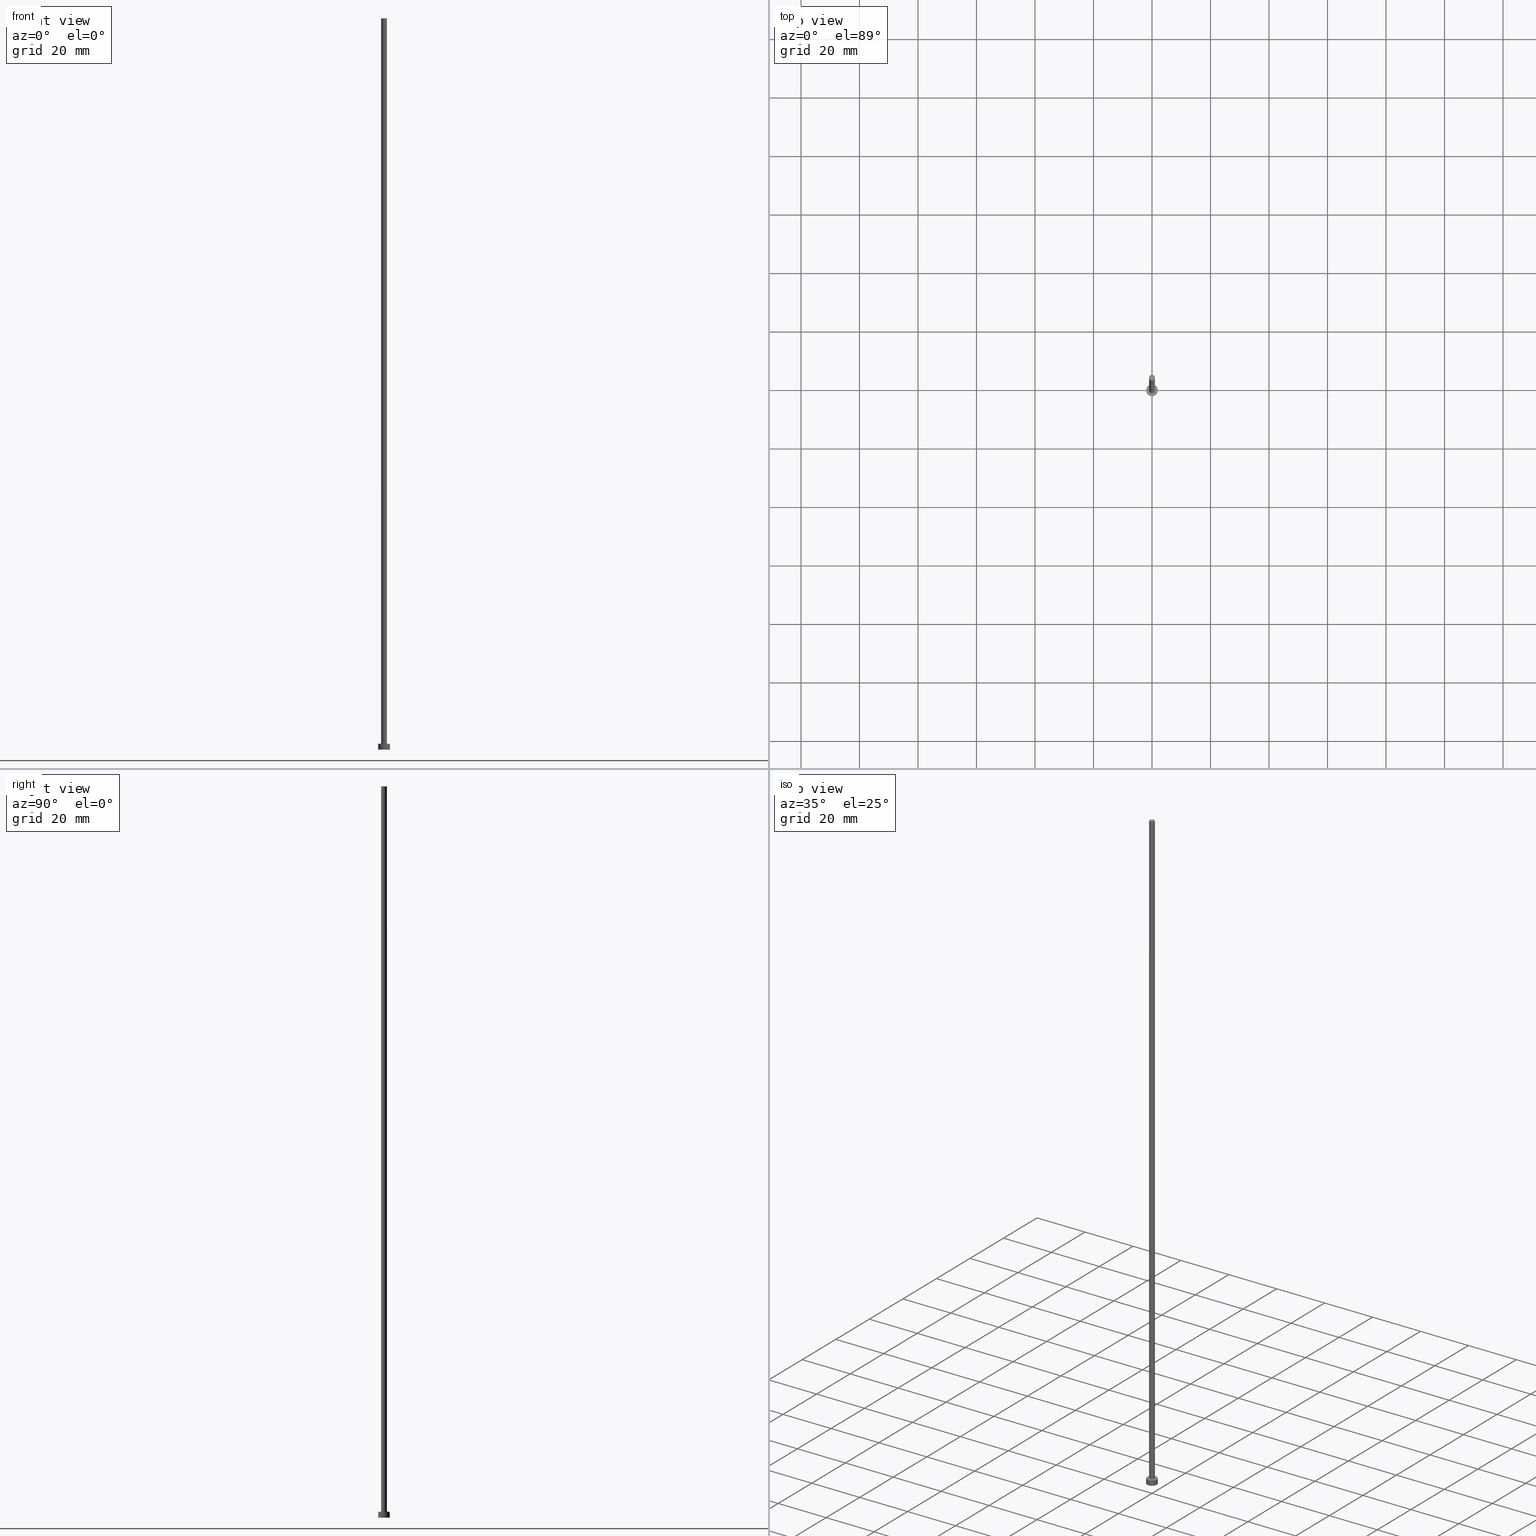
[diagram: canonical four-view strip — front | top / right | iso, engineering-drawing reading convention]
A machine part, canonical four-view strip (front | top / right | iso — engineering-drawing reading convention). The complete STEP part file that produces these views, byte-faithful:
ISO-10303-21;
HEADER;
FILE_DESCRIPTION (( 'STEP AP203' ),
    '1' );
FILE_NAME ('24d1.STEP',
    '2023-02-13T17:14:08',
    ( '' ),
    ( '' ),
    'SwSTEP 2.0',
    'SolidWorks 2019',
    '' );
FILE_SCHEMA (( 'CONFIG_CONTROL_DESIGN' ));
ENDSEC;

DATA;
#1 = CALENDAR_DATE ( 2023, 13, 2 ) ;
#2 = APPROVAL ( #202, 'NEUR�EN�' ) ;
#3 = ORIENTED_EDGE ( 'NONE', *, *, #102, .T. ) ;
#4 = DATE_AND_TIME ( #186, #90 ) ;
#5 = EDGE_LOOP ( 'NONE', ( #205, #103 ) ) ;
#6 = PERSON_AND_ORGANIZATION ( #9, #159 ) ;
#7 = COORDINATED_UNIVERSAL_TIME_OFFSET ( 1, 0, .AHEAD. ) ;
#8 = CARTESIAN_POINT ( 'NONE',  ( -1.000000000000000000, 0.000000000000000000, 250.0000000000000000 ) ) ;
#9 = PERSON ( 'NEUR�EN�', 'NEUR�EN�', 'NEUR�EN�', ('NEUR�EN�'), ('NEUR�EN�'), ('NEUR�EN�') ) ;
#10 = DIRECTION ( 'NONE',  ( 0.000000000000000000, 0.000000000000000000, 1.000000000000000000 ) ) ;
#11 = DIRECTION ( 'NONE',  ( 1.000000000000000000, 0.000000000000000000, -0.000000000000000000 ) ) ;
#12 = CARTESIAN_POINT ( 'NONE',  ( 2.000000000000000000, 2.449293598294706414E-16, 2.000000000000000000 ) ) ;
#13 = APPROVAL ( #216, 'NEUR�EN�' ) ;
#14 = CYLINDRICAL_SURFACE ( 'NONE', #69, 1.000000000000000000 ) ;
#15 = DIRECTION ( 'NONE',  ( 0.000000000000000000, 0.000000000000000000, 1.000000000000000000 ) ) ;
#16 = EDGE_CURVE ( 'NONE', #44, #240, #175, .T. ) ;
#17 = CARTESIAN_POINT ( 'NONE',  ( 0.000000000000000000, 0.000000000000000000, 0.000000000000000000 ) ) ;
#18 = LOCAL_TIME ( 18, 14, 8.000000000000000000, #87 ) ;
#19 = EDGE_CURVE ( 'NONE', #28, #127, #77, .T. ) ;
#20 = PERSON_AND_ORGANIZATION ( #9, #159 ) ;
#21 = EDGE_LOOP ( 'NONE', ( #23, #170, #130, #65 ) ) ;
#22 = SECURITY_CLASSIFICATION_LEVEL ( 'unclassified' ) ;
#23 = ORIENTED_EDGE ( 'NONE', *, *, #118, .F. ) ;
#24 = APPROVAL_ROLE ( '' ) ;
#25 = ORIENTED_EDGE ( 'NONE', *, *, #173, .F. ) ;
#26 = ADVANCED_FACE ( 'NONE', ( #228, #48 ), #208, .T. ) ;
#27 = APPROVAL_ROLE ( '' ) ;
#28 = VERTEX_POINT ( 'NONE', #12 ) ;
#29 = EDGE_LOOP ( 'NONE', ( #149, #144 ) ) ;
#30 = AXIS2_PLACEMENT_3D ( 'NONE', #98, #54, #180 ) ;
#31 = DIRECTION ( 'NONE',  ( 0.000000000000000000, 0.000000000000000000, 1.000000000000000000 ) ) ;
#32 = DIRECTION ( 'NONE',  ( 0.000000000000000000, 0.000000000000000000, 1.000000000000000000 ) ) ;
#33 = PLANE ( 'NONE',  #226 ) ;
#34 = ADVANCED_FACE ( 'NONE', ( #229 ), #112, .T. ) ;
#35 = DIRECTION ( 'NONE',  ( 0.000000000000000000, 0.000000000000000000, 1.000000000000000000 ) ) ;
#36 = DIRECTION ( 'NONE',  ( -0.000000000000000000, -0.000000000000000000, -1.000000000000000000 ) ) ;
#37 = SHAPE_DEFINITION_REPRESENTATION ( #72, #179 ) ;
#38 = AXIS2_PLACEMENT_3D ( 'NONE', #176, #10, #231 ) ;
#39 = SECURITY_CLASSIFICATION ( '', '', #22 ) ;
#40 = PERSON_AND_ORGANIZATION ( #9, #159 ) ;
#41 = ORIENTED_EDGE ( 'NONE', *, *, #16, .F. ) ;
#42 = ORIENTED_EDGE ( 'NONE', *, *, #19, .F. ) ;
#43 = CALENDAR_DATE ( 2023, 13, 2 ) ;
#44 = VERTEX_POINT ( 'NONE', #154 ) ;
#45 = DATE_AND_TIME ( #1, #59 ) ;
#46 = VERTEX_POINT ( 'NONE', #8 ) ;
#47 = EDGE_CURVE ( 'NONE', #106, #46, #116, .T. ) ;
#48 = FACE_OUTER_BOUND ( 'NONE', #29, .T. ) ;
#49 = CC_DESIGN_DATE_AND_TIME_ASSIGNMENT ( #221, #67, ( #132 ) ) ;
#50 = AXIS2_PLACEMENT_3D ( 'NONE', #100, #123, #74 ) ;
#51 = DIRECTION ( 'NONE',  ( -0.000000000000000000, -0.000000000000000000, -1.000000000000000000 ) ) ;
#52 = ADVANCED_FACE ( 'NONE', ( #91 ), #33, .F. ) ;
#53 = PLANE ( 'NONE',  #198 ) ;
#54 = DIRECTION ( 'NONE',  ( 0.000000000000000000, 0.000000000000000000, 1.000000000000000000 ) ) ;
#55 = DIRECTION ( 'NONE',  ( -1.000000000000000000, 0.000000000000000000, 0.000000000000000000 ) ) ;
#56 = CC_DESIGN_PERSON_AND_ORGANIZATION_ASSIGNMENT ( #104, #124, ( #39 ) ) ;
#57 = PERSON_AND_ORGANIZATION_ROLE ( 'creator' ) ;
#58 = VECTOR ( 'NONE', #36, 1000.000000000000000 ) ;
#59 = LOCAL_TIME ( 18, 14, 8.000000000000000000, #203 ) ;
#60 = ORIENTED_EDGE ( 'NONE', *, *, #152, .T. ) ;
#61 = PERSON_AND_ORGANIZATION ( #9, #159 ) ;
#62 = COORDINATED_UNIVERSAL_TIME_OFFSET ( 1, 0, .AHEAD. ) ;
#63 = ORIENTED_EDGE ( 'NONE', *, *, #118, .T. ) ;
#64 = PERSON_AND_ORGANIZATION_ROLE ( 'design_owner' ) ;
#65 = ORIENTED_EDGE ( 'NONE', *, *, #191, .T. ) ;
#66 = APPROVAL_PERSON_ORGANIZATION ( #6, #2, #184 ) ;
#67 = DATE_TIME_ROLE ( 'creation_date' ) ;
#68 = DIRECTION ( 'NONE',  ( -0.000000000000000000, -0.000000000000000000, -1.000000000000000000 ) ) ;
#69 = AXIS2_PLACEMENT_3D ( 'NONE', #250, #75, #95 ) ;
#70 = LINE ( 'NONE', #117, #88 ) ;
#71 = CYLINDRICAL_SURFACE ( 'NONE', #115, 2.000000000000000000 ) ;
#72 = PRODUCT_DEFINITION_SHAPE ( 'NONE', 'NONE',  #132 ) ;
#73 = EDGE_CURVE ( 'NONE', #46, #106, #190, .T. ) ;
#74 = DIRECTION ( 'NONE',  ( 1.000000000000000000, 0.000000000000000000, 0.000000000000000000 ) ) ;
#75 = DIRECTION ( 'NONE',  ( -0.000000000000000000, -0.000000000000000000, -1.000000000000000000 ) ) ;
#76 = CIRCLE ( 'NONE', #219, 2.000000000000000000 ) ;
#77 = CIRCLE ( 'NONE', #153, 2.000000000000000000 ) ;
#78 = APPLICATION_CONTEXT ( 'configuration controlled 3d designs of mechanical parts and assemblies' ) ;
#79 = CARTESIAN_POINT ( 'NONE',  ( -2.000000000000000000, 0.000000000000000000, 2.000000000000000000 ) ) ;
#80 = PERSON_AND_ORGANIZATION ( #9, #159 ) ;
#81 = ORIENTED_EDGE ( 'NONE', *, *, #102, .F. ) ;
#82 = AXIS2_PLACEMENT_3D ( 'NONE', #89, #171, #185 ) ;
#83 = CIRCLE ( 'NONE', #30, 2.000000000000000000 ) ;
#84 = EDGE_LOOP ( 'NONE', ( #107, #41 ) ) ;
#85 = PERSON_AND_ORGANIZATION_ROLE ( 'creator' ) ;
#86 = VERTEX_POINT ( 'NONE', #212 ) ;
#87 = COORDINATED_UNIVERSAL_TIME_OFFSET ( 1, 0, .AHEAD. ) ;
#88 = VECTOR ( 'NONE', #194, 1000.000000000000000 ) ;
#89 = CARTESIAN_POINT ( 'NONE',  ( 0.000000000000000000, 0.000000000000000000, 0.000000000000000000 ) ) ;
#90 = LOCAL_TIME ( 18, 14, 8.000000000000000000, #62 ) ;
#91 = FACE_OUTER_BOUND ( 'NONE', #84, .T. ) ;
#92 = DIRECTION ( 'NONE',  ( -1.000000000000000000, 0.000000000000000000, 0.000000000000000000 ) ) ;
#93 = LINE ( 'NONE', #245, #230 ) ;
#94 = EDGE_CURVE ( 'NONE', #106, #201, #70, .T. ) ;
#95 = DIRECTION ( 'NONE',  ( -1.000000000000000000, 0.000000000000000000, 0.000000000000000000 ) ) ;
#96 = CIRCLE ( 'NONE', #50, 1.000000000000000000 ) ;
#97 = CARTESIAN_POINT ( 'NONE',  ( 0.000000000000000000, 0.000000000000000000, 2.000000000000000000 ) ) ;
#98 = CARTESIAN_POINT ( 'NONE',  ( 0.000000000000000000, 0.000000000000000000, 2.000000000000000000 ) ) ;
#99 = DESIGN_CONTEXT ( 'detailed design', #78, 'design' ) ;
#100 = CARTESIAN_POINT ( 'NONE',  ( 0.000000000000000000, 0.000000000000000000, 2.000000000000000000 ) ) ;
#101 = COORDINATED_UNIVERSAL_TIME_OFFSET ( 1, 0, .AHEAD. ) ;
#102 = EDGE_CURVE ( 'NONE', #46, #86, #93, .T. ) ;
#103 = ORIENTED_EDGE ( 'NONE', *, *, #47, .T. ) ;
#104 = PERSON_AND_ORGANIZATION ( #9, #159 ) ;
#105 = AXIS2_PLACEMENT_3D ( 'NONE', #193, #192, #11 ) ;
#106 = VERTEX_POINT ( 'NONE', #174 ) ;
#107 = ORIENTED_EDGE ( 'NONE', *, *, #191, .F. ) ;
#108 = PERSON_AND_ORGANIZATION ( #9, #159 ) ;
#109 = ORIENTED_EDGE ( 'NONE', *, *, #157, .F. ) ;
#110 = CC_DESIGN_PERSON_AND_ORGANIZATION_ASSIGNMENT ( #61, #57, ( #141 ) ) ;
#111 = DIRECTION ( 'NONE',  ( 1.000000000000000000, 0.000000000000000000, 0.000000000000000000 ) ) ;
#112 = CYLINDRICAL_SURFACE ( 'NONE', #220, 1.000000000000000000 ) ;
#113 = PRODUCT_RELATED_PRODUCT_CATEGORY ( 'detail', '', ( #249 ) ) ;
#114 = DIRECTION ( 'NONE',  ( 1.000000000000000000, 0.000000000000000000, 0.000000000000000000 ) ) ;
#115 = AXIS2_PLACEMENT_3D ( 'NONE', #160, #232, #233 ) ;
#116 = CIRCLE ( 'NONE', #38, 1.000000000000000000 ) ;
#117 = CARTESIAN_POINT ( 'NONE',  ( 1.000000000000000000, 1.224646799147353207E-16, 250.0000000000000000 ) ) ;
#118 = EDGE_CURVE ( 'NONE', #28, #44, #213, .T. ) ;
#119 = CYLINDRICAL_SURFACE ( 'NONE', #148, 2.000000000000000000 ) ;
#120 = APPROVAL_PERSON_ORGANIZATION ( #80, #168, #27 ) ;
#121 = DIRECTION ( 'NONE',  ( 1.000000000000000000, 0.000000000000000000, 0.000000000000000000 ) ) ;
#122 = UNCERTAINTY_MEASURE_WITH_UNIT (LENGTH_MEASURE( 1.000000000000000082E-05 ), #139, 'distance_accuracy_value', 'NONE');
#123 = DIRECTION ( 'NONE',  ( 0.000000000000000000, 0.000000000000000000, 1.000000000000000000 ) ) ;
#124 = PERSON_AND_ORGANIZATION_ROLE ( 'classification_officer' ) ;
#125 = CC_DESIGN_APPROVAL ( #2, ( #132 ) ) ;
#126 = DATE_AND_TIME ( #143, #243 ) ;
#127 = VERTEX_POINT ( 'NONE', #151 ) ;
#128 = CALENDAR_DATE ( 2023, 13, 2 ) ;
#129 = APPROVAL_STATUS ( 'not_yet_approved' ) ;
#130 = ORIENTED_EDGE ( 'NONE', *, *, #157, .T. ) ;
#131 = PERSON_AND_ORGANIZATION_ROLE ( 'design_supplier' ) ;
#132 = PRODUCT_DEFINITION ( 'NEZN�M�', '', #141, #99 ) ;
#133 = CARTESIAN_POINT ( 'NONE',  ( 0.000000000000000000, 0.000000000000000000, 0.000000000000000000 ) ) ;
#134 = DIRECTION ( 'NONE',  ( 0.000000000000000000, 0.000000000000000000, 1.000000000000000000 ) ) ;
#135 = CC_DESIGN_APPROVAL ( #13, ( #39 ) ) ;
#136 =( NAMED_UNIT ( * ) PLANE_ANGLE_UNIT ( ) SI_UNIT ( $, .RADIAN. ) );
#137 = CARTESIAN_POINT ( 'NONE',  ( 1.000000000000000000, 1.224646799147353207E-16, 2.000000000000000000 ) ) ;
#138 = CARTESIAN_POINT ( 'NONE',  ( 0.000000000000000000, 0.000000000000000000, 250.0000000000000000 ) ) ;
#139 =( LENGTH_UNIT ( ) NAMED_UNIT ( * ) SI_UNIT ( .MILLI., .METRE. ) );
#140 = AXIS2_PLACEMENT_3D ( 'NONE', #97, #15, #183 ) ;
#141 = PRODUCT_DEFINITION_FORMATION_WITH_SPECIFIED_SOURCE ( 'LIBOVOLN�', '', #249, .NOT_KNOWN. ) ;
#142 = CARTESIAN_POINT ( 'NONE',  ( 0.000000000000000000, 0.000000000000000000, 2.000000000000000000 ) ) ;
#143 = CALENDAR_DATE ( 2023, 13, 2 ) ;
#144 = ORIENTED_EDGE ( 'NONE', *, *, #19, .T. ) ;
#145 = APPLICATION_PROTOCOL_DEFINITION ( 'international standard', 'config_control_design', 1994, #78 ) ;
#146 = EDGE_LOOP ( 'NONE', ( #25, #187 ) ) ;
#147 = PERSON_AND_ORGANIZATION ( #9, #159 ) ;
#148 = AXIS2_PLACEMENT_3D ( 'NONE', #163, #237, #55 ) ;
#149 = ORIENTED_EDGE ( 'NONE', *, *, #235, .T. ) ;
#150 = ORIENTED_EDGE ( 'NONE', *, *, #94, .T. ) ;
#151 = CARTESIAN_POINT ( 'NONE',  ( -2.000000000000000000, 0.000000000000000000, 2.000000000000000000 ) ) ;
#152 = EDGE_CURVE ( 'NONE', #201, #86, #246, .T. ) ;
#153 = AXIS2_PLACEMENT_3D ( 'NONE', #142, #134, #111 ) ;
#154 = CARTESIAN_POINT ( 'NONE',  ( 2.000000000000000000, 2.449293598294706414E-16, 0.000000000000000000 ) ) ;
#155 = CC_DESIGN_SECURITY_CLASSIFICATION ( #39, ( #141 ) ) ;
#156 = CARTESIAN_POINT ( 'NONE',  ( 0.000000000000000000, 0.000000000000000000, 250.0000000000000000 ) ) ;
#157 = EDGE_CURVE ( 'NONE', #127, #240, #161, .T. ) ;
#158 = VECTOR ( 'NONE', #68, 1000.000000000000000 ) ;
#159 = ORGANIZATION ( 'NEUR�EN�', 'NEUR�EN�', '' ) ;
#160 = CARTESIAN_POINT ( 'NONE',  ( 0.000000000000000000, 0.000000000000000000, 2.000000000000000000 ) ) ;
#161 = LINE ( 'NONE', #79, #58 ) ;
#162 = CARTESIAN_POINT ( 'NONE',  ( -2.000000000000000000, 0.000000000000000000, 0.000000000000000000 ) ) ;
#163 = CARTESIAN_POINT ( 'NONE',  ( 0.000000000000000000, 0.000000000000000000, 2.000000000000000000 ) ) ;
#164 = CC_DESIGN_PERSON_AND_ORGANIZATION_ASSIGNMENT ( #20, #131, ( #141 ) ) ;
#165 = APPROVAL_PERSON_ORGANIZATION ( #108, #13, #24 ) ;
#166 = MECHANICAL_CONTEXT ( 'NONE', #223, 'mechanical' ) ;
#167 = ORIENTED_EDGE ( 'NONE', *, *, #173, .T. ) ;
#168 = APPROVAL ( #129, 'NEUR�EN�' ) ;
#169 = APPROVAL_DATE_TIME ( #200, #2 ) ;
#170 = ORIENTED_EDGE ( 'NONE', *, *, #235, .F. ) ;
#171 = DIRECTION ( 'NONE',  ( 0.000000000000000000, 0.000000000000000000, 1.000000000000000000 ) ) ;
#172 = AXIS2_PLACEMENT_3D ( 'NONE', #236, #35, #121 ) ;
#173 = EDGE_CURVE ( 'NONE', #86, #201, #96, .T. ) ;
#174 = CARTESIAN_POINT ( 'NONE',  ( 1.000000000000000000, 1.224646799147353207E-16, 250.0000000000000000 ) ) ;
#175 = CIRCLE ( 'NONE', #82, 2.000000000000000000 ) ;
#176 = CARTESIAN_POINT ( 'NONE',  ( 0.000000000000000000, 0.000000000000000000, 250.0000000000000000 ) ) ;
#177 = CARTESIAN_POINT ( 'NONE',  ( 0.000000000000000000, 0.000000000000000000, 250.0000000000000000 ) ) ;
#178 = ADVANCED_FACE ( 'NONE', ( #182 ), #53, .T. ) ;
#179 = ADVANCED_BREP_SHAPE_REPRESENTATION ( '24d1', ( #224, #172 ), #247 ) ;
#180 = DIRECTION ( 'NONE',  ( 1.000000000000000000, 0.000000000000000000, 0.000000000000000000 ) ) ;
#181 = DIRECTION ( 'NONE',  ( 0.000000000000000000, 0.000000000000000000, 1.000000000000000000 ) ) ;
#182 = FACE_OUTER_BOUND ( 'NONE', #5, .T. ) ;
#183 = DIRECTION ( 'NONE',  ( 1.000000000000000000, 0.000000000000000000, 0.000000000000000000 ) ) ;
#184 = APPROVAL_ROLE ( '' ) ;
#185 = DIRECTION ( 'NONE',  ( 1.000000000000000000, 0.000000000000000000, 0.000000000000000000 ) ) ;
#186 = CALENDAR_DATE ( 2023, 13, 2 ) ;
#187 = ORIENTED_EDGE ( 'NONE', *, *, #152, .F. ) ;
#188 = APPROVAL_DATE_TIME ( #45, #168 ) ;
#189 = ORIENTED_EDGE ( 'NONE', *, *, #47, .F. ) ;
#190 = CIRCLE ( 'NONE', #253, 1.000000000000000000 ) ;
#191 = EDGE_CURVE ( 'NONE', #240, #44, #76, .T. ) ;
#192 = DIRECTION ( 'NONE',  ( 0.000000000000000000, 0.000000000000000000, 1.000000000000000000 ) ) ;
#193 = CARTESIAN_POINT ( 'NONE',  ( 0.000000000000000000, 0.000000000000000000, 2.000000000000000000 ) ) ;
#194 = DIRECTION ( 'NONE',  ( -0.000000000000000000, -0.000000000000000000, -1.000000000000000000 ) ) ;
#195 = FACE_OUTER_BOUND ( 'NONE', #222, .T. ) ;
#196 = CC_DESIGN_PERSON_AND_ORGANIZATION_ASSIGNMENT ( #147, #85, ( #132 ) ) ;
#197 = FACE_OUTER_BOUND ( 'NONE', #21, .T. ) ;
#198 = AXIS2_PLACEMENT_3D ( 'NONE', #138, #234, #215 ) ;
#199 = APPROVAL_DATE_TIME ( #4, #13 ) ;
#200 = DATE_AND_TIME ( #43, #18 ) ;
#201 = VERTEX_POINT ( 'NONE', #137 ) ;
#202 = APPROVAL_STATUS ( 'not_yet_approved' ) ;
#203 = COORDINATED_UNIVERSAL_TIME_OFFSET ( 1, 0, .AHEAD. ) ;
#204 = DATE_TIME_ROLE ( 'classification_date' ) ;
#205 = ORIENTED_EDGE ( 'NONE', *, *, #73, .T. ) ;
#206 = ADVANCED_FACE ( 'NONE', ( #195 ), #119, .T. ) ;
#207 = EDGE_LOOP ( 'NONE', ( #217, #225, #3, #167 ) ) ;
#208 = PLANE ( 'NONE',  #105 ) ;
#209 = DIRECTION ( 'NONE',  ( 1.000000000000000000, 0.000000000000000000, -0.000000000000000000 ) ) ;
#210 = ADVANCED_FACE ( 'NONE', ( #248 ), #14, .T. ) ;
#211 = DIRECTION ( 'NONE',  ( -0.000000000000000000, -0.000000000000000000, -1.000000000000000000 ) ) ;
#212 = CARTESIAN_POINT ( 'NONE',  ( -1.000000000000000000, 0.000000000000000000, 2.000000000000000000 ) ) ;
#213 = LINE ( 'NONE', #242, #158 ) ;
#214 =( NAMED_UNIT ( * ) SI_UNIT ( $, .STERADIAN. ) SOLID_ANGLE_UNIT ( ) );
#215 = DIRECTION ( 'NONE',  ( 1.000000000000000000, 0.000000000000000000, -0.000000000000000000 ) ) ;
#216 = APPROVAL_STATUS ( 'not_yet_approved' ) ;
#217 = ORIENTED_EDGE ( 'NONE', *, *, #94, .F. ) ;
#218 = EDGE_LOOP ( 'NONE', ( #189, #150, #60, #81 ) ) ;
#219 = AXIS2_PLACEMENT_3D ( 'NONE', #17, #181, #251 ) ;
#220 = AXIS2_PLACEMENT_3D ( 'NONE', #177, #211, #92 ) ;
#221 = DATE_AND_TIME ( #128, #254 ) ;
#222 = EDGE_LOOP ( 'NONE', ( #42, #63, #239, #109 ) ) ;
#223 = APPLICATION_CONTEXT ( 'configuration controlled 3d designs of mechanical parts and assemblies' ) ;
#224 = MANIFOLD_SOLID_BREP ( 'P�idat vysunut�m3', #255 ) ;
#225 = ORIENTED_EDGE ( 'NONE', *, *, #73, .F. ) ;
#226 = AXIS2_PLACEMENT_3D ( 'NONE', #133, #32, #209 ) ;
#227 = CC_DESIGN_DATE_AND_TIME_ASSIGNMENT ( #126, #204, ( #39 ) ) ;
#228 = FACE_BOUND ( 'NONE', #146, .T. ) ;
#229 = FACE_OUTER_BOUND ( 'NONE', #207, .T. ) ;
#230 = VECTOR ( 'NONE', #51, 1000.000000000000000 ) ;
#231 = DIRECTION ( 'NONE',  ( 1.000000000000000000, 0.000000000000000000, 0.000000000000000000 ) ) ;
#232 = DIRECTION ( 'NONE',  ( -0.000000000000000000, -0.000000000000000000, -1.000000000000000000 ) ) ;
#233 = DIRECTION ( 'NONE',  ( -1.000000000000000000, 0.000000000000000000, 0.000000000000000000 ) ) ;
#234 = DIRECTION ( 'NONE',  ( 0.000000000000000000, 0.000000000000000000, 1.000000000000000000 ) ) ;
#235 = EDGE_CURVE ( 'NONE', #127, #28, #83, .T. ) ;
#236 = CARTESIAN_POINT ( 'NONE',  ( 0.000000000000000000, 0.000000000000000000, 0.000000000000000000 ) ) ;
#237 = DIRECTION ( 'NONE',  ( -0.000000000000000000, -0.000000000000000000, -1.000000000000000000 ) ) ;
#238 = ADVANCED_FACE ( 'NONE', ( #197 ), #71, .T. ) ;
#239 = ORIENTED_EDGE ( 'NONE', *, *, #16, .T. ) ;
#240 = VERTEX_POINT ( 'NONE', #162 ) ;
#241 = CC_DESIGN_APPROVAL ( #168, ( #141 ) ) ;
#242 = CARTESIAN_POINT ( 'NONE',  ( 2.000000000000000000, 2.449293598294706414E-16, 2.000000000000000000 ) ) ;
#243 = LOCAL_TIME ( 18, 14, 8.000000000000000000, #7 ) ;
#244 = CC_DESIGN_PERSON_AND_ORGANIZATION_ASSIGNMENT ( #40, #64, ( #249 ) ) ;
#245 = CARTESIAN_POINT ( 'NONE',  ( -1.000000000000000000, 0.000000000000000000, 250.0000000000000000 ) ) ;
#246 = CIRCLE ( 'NONE', #140, 1.000000000000000000 ) ;
#247 =( GEOMETRIC_REPRESENTATION_CONTEXT ( 3 ) GLOBAL_UNCERTAINTY_ASSIGNED_CONTEXT ( ( #122 ) ) GLOBAL_UNIT_ASSIGNED_CONTEXT ( ( #139, #136, #214 ) ) REPRESENTATION_CONTEXT ( 'NONE', 'WORKASPACE' ) );
#248 = FACE_OUTER_BOUND ( 'NONE', #218, .T. ) ;
#249 = PRODUCT ( '24d1', '24d1', '', ( #166 ) ) ;
#250 = CARTESIAN_POINT ( 'NONE',  ( 0.000000000000000000, 0.000000000000000000, 250.0000000000000000 ) ) ;
#251 = DIRECTION ( 'NONE',  ( 1.000000000000000000, 0.000000000000000000, 0.000000000000000000 ) ) ;
#252 = APPLICATION_PROTOCOL_DEFINITION ( 'international standard', 'config_control_design', 1994, #223 ) ;
#253 = AXIS2_PLACEMENT_3D ( 'NONE', #156, #31, #114 ) ;
#254 = LOCAL_TIME ( 18, 14, 8.000000000000000000, #101 ) ;
#255 = CLOSED_SHELL ( 'NONE', ( #210, #206, #238, #26, #52, #34, #178 ) ) ;
ENDSEC;
END-ISO-10303-21;
